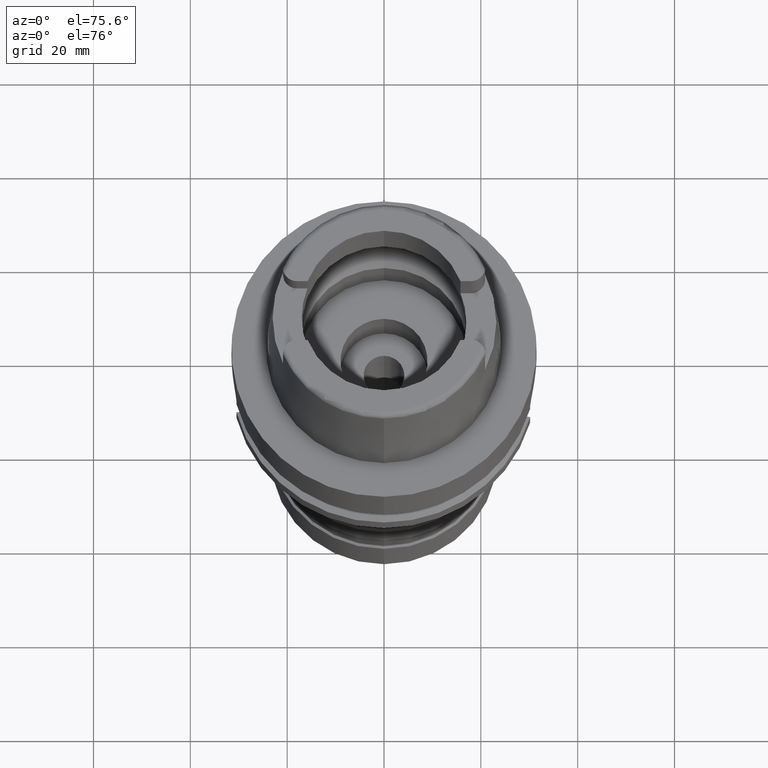
[diagram: clean part render]
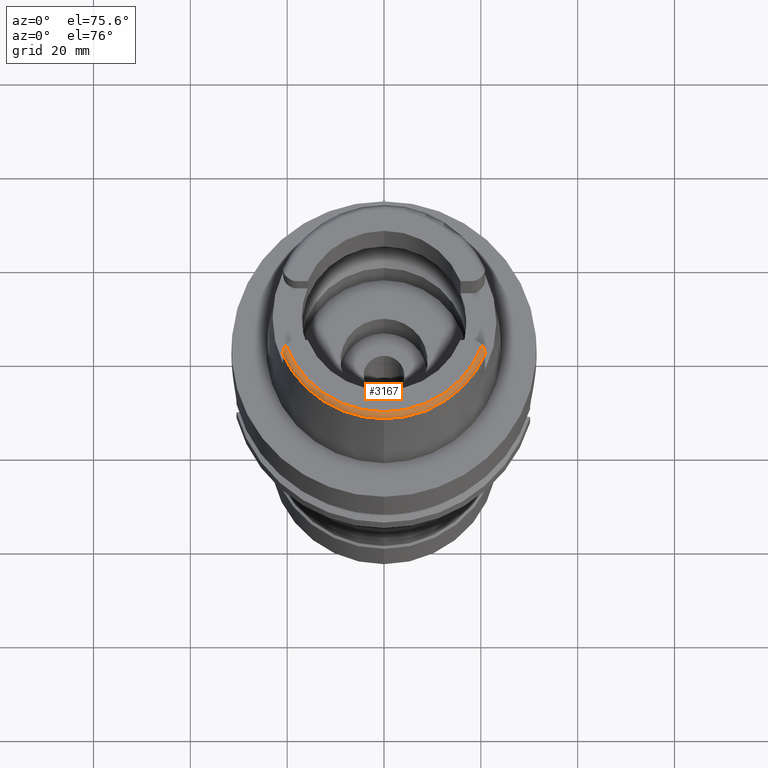
[diagram: same view with one face highlighted and labeled with its STEP entity id]
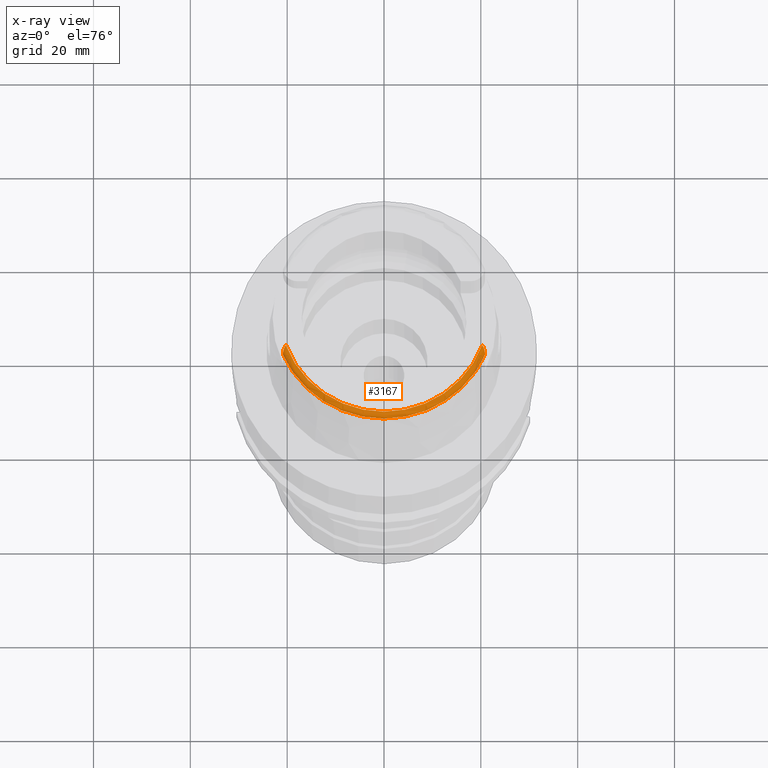
[diagram: x-ray of the same camera — body ghosted, the highlighted face saturated]
A machine part, auxiliary view. The second image highlights one B-rep face of the part: STEP entity #3167.
The next image is the same camera in x-ray: the body ghosted, the highlighted face saturated — about 0% of this face is hidden behind the body in this view.
In plain terms, the highlighted toroidal blend (fillet) surface has major radius 21.5735 mm and minor (blend) radius 1.2 mm.
Its self-contained STEP definition (entity closure, byte-faithful):
#281=CARTESIAN_POINT('',(0.E0,1.601838013285E-14,3.2E1));
#282=DIRECTION('',(0.E0,0.E0,-1.E0));
#283=DIRECTION('',(9.395199128801E-1,-3.424942821446E-1,0.E0));
#284=AXIS2_PLACEMENT_3D('',#281,#282,#283);
#289=CARTESIAN_POINT('',(0.E0,1.601838013285E-14,3.2E1));
#290=DIRECTION('',(0.E0,0.E0,-1.E0));
#291=DIRECTION('',(-9.289215035771E-4,-9.999995685523E-1,0.E0));
#292=AXIS2_PLACEMENT_3D('',#289,#290,#291);
#311=CARTESIAN_POINT('',(-2.086974104063E1,-9.111384045991E0,3.085992598970E1));
#312=CARTESIAN_POINT('',(-2.086968049913E1,-9.106869185121E0,3.089716359061E1));
#313=CARTESIAN_POINT('',(-2.086945458154E1,-9.089325966571E0,3.097366148491E1));
#314=CARTESIAN_POINT('',(-2.086787117683E1,-9.031975009994E0,3.109655136946E1));
#315=CARTESIAN_POINT('',(-2.086333573834E1,-8.945747681221E0,3.121972793316E1));
#316=CARTESIAN_POINT('',(-2.085318603399E1,-8.830502089209E0,3.134478445266E1));
#317=CARTESIAN_POINT('',(-2.083429637357E1,-8.688901607577E0,3.146900528865E1));
#318=CARTESIAN_POINT('',(-2.080196847323E1,-8.518162510526E0,3.159398467726E1));
#319=CARTESIAN_POINT('',(-2.074996037687E1,-8.316918188337E0,3.171734272143E1));
#320=CARTESIAN_POINT('',(-2.067036566628E1,-8.085688985214E0,3.183331067642E1));
#321=CARTESIAN_POINT('',(-2.055786724940E1,-7.835743047313E0,3.192902117289E1));
#322=CARTESIAN_POINT('',(-2.041707015014E1,-7.591764806511E0,3.198839158464E1));
#323=CARTESIAN_POINT('',(-2.031886667882E1,-7.453679048392E0,3.2E1));
#324=CARTESIAN_POINT('',(-2.026871835884E1,-7.388795116670E0,3.2E1));
#329=CARTESIAN_POINT('',(2.026871835884E1,-7.388795116670E0,3.2E1));
#330=CARTESIAN_POINT('',(2.031886943846E1,-7.453682618921E0,3.2E1));
#331=CARTESIAN_POINT('',(2.041707347575E1,-7.591770762304E0,3.198838998002E1));
#332=CARTESIAN_POINT('',(2.055785678394E1,-7.835725151662E0,3.192902538579E1));
#333=CARTESIAN_POINT('',(2.067034800821E1,-8.085644936151E0,3.183332992785E1));
#334=CARTESIAN_POINT('',(2.074994915174E1,-8.316880932559E0,3.171736329572E1));
#335=CARTESIAN_POINT('',(2.080195747223E1,-8.518113746449E0,3.159401699234E1));
#336=CARTESIAN_POINT('',(2.083429193294E1,-8.688870798318E0,3.146903108646E1));
#337=CARTESIAN_POINT('',(2.085318529251E1,-8.830494132759E0,3.134479256341E1));
#338=CARTESIAN_POINT('',(2.086333532394E1,-8.945741215611E0,3.121973671257E1));
#339=CARTESIAN_POINT('',(2.086787135135E1,-9.031978268690E0,3.109654582821E1));
#340=CARTESIAN_POINT('',(2.086945445093E1,-9.089322982390E0,3.097366873970E1));
#341=CARTESIAN_POINT('',(2.086968056482E1,-9.106868609306E0,3.089716564832E1));
#342=CARTESIAN_POINT('',(2.086974110889E1,-9.111383544664E0,3.085992740419E1));
#347=CARTESIAN_POINT('',(0.E0,1.601838013285E-14,3.085992712280E1));
#348=DIRECTION('',(0.E0,0.E0,-1.E0));
#349=DIRECTION('',(9.164655183266E-1,-4.001136759952E-1,0.E0));
#350=AXIS2_PLACEMENT_3D('',#347,#348,#349);
#355=CARTESIAN_POINT('',(0.E0,1.601838013285E-14,3.085992712280E1));
#356=DIRECTION('',(0.E0,0.E0,-1.E0));
#357=DIRECTION('',(0.E0,-1.E0,0.E0));
#358=AXIS2_PLACEMENT_3D('',#355,#356,#357);
#363=CARTESIAN_POINT('',(0.E0,1.601838013285E-14,3.085992712280E1));
#364=DIRECTION('',(0.E0,0.E0,-1.E0));
#365=DIRECTION('',(-9.289215035765E-4,-9.999995685523E-1,0.E0));
#366=AXIS2_PLACEMENT_3D('',#363,#364,#365);
#2615=CARTESIAN_POINT('',(-2.026871835884E1,-7.388795116669E0,3.2E1));
#2617=VERTEX_POINT('',#2615);
#2623=CARTESIAN_POINT('',(2.026871835884E1,-7.388795116670E0,3.2E1));
#2624=VERTEX_POINT('',#2623);
#2625=CARTESIAN_POINT('',(-2.004007373911E-2,-2.157347527826E1,3.2E1));
#2626=VERTEX_POINT('',#2625);
#2643=VERTEX_POINT('',#311);
#2652=VERTEX_POINT('',#342);
#2653=CARTESIAN_POINT('',(0.E0,-2.277198729362E1,3.085992712280E1));
#2654=VERTEX_POINT('',#2653);
#2655=CARTESIAN_POINT('',(-2.115338867621E-2,-2.277197746870E1,
3.085992712280E1));
#2656=VERTEX_POINT('',#2655);
#3149=CARTESIAN_POINT('',(0.E0,1.601838013285E-14,3.08E1));
#3150=DIRECTION('',(0.E0,0.E0,-1.E0));
#3151=DIRECTION('',(-9.289215035770E-4,-9.999995685523E-1,0.E0));
#3152=AXIS2_PLACEMENT_3D('',#3149,#3150,#3151);
#3153=TOROIDAL_SURFACE('',#3152,2.157348458609E1,1.2E0);
#3154=ORIENTED_EDGE('',*,*,#3138,.T.);
#3155=ORIENTED_EDGE('',*,*,#3127,.F.);
#3156=ORIENTED_EDGE('',*,*,#3125,.F.);
#3158=ORIENTED_EDGE('',*,*,#3157,.T.);
#3160=ORIENTED_EDGE('',*,*,#3159,.T.);
#3162=ORIENTED_EDGE('',*,*,#3161,.T.);
#3164=ORIENTED_EDGE('',*,*,#3163,.T.);
#3165=EDGE_LOOP('',(#3154,#3155,#3156,#3158,#3160,#3162,#3164));
#3166=FACE_OUTER_BOUND('',#3165,.F.);
#285=CIRCLE('',#284,2.157348458609E1);
#293=CIRCLE('',#292,2.157348458609E1);
#325=B_SPLINE_CURVE_WITH_KNOTS('',3,(#311,#312,#313,#314,#315,#316,#317,#318,
#319,#320,#321,#322,#323,#324),.UNSPECIFIED.,.F.,.F.,(4,1,1,1,1,1,1,1,1,1,1,4),(
0.E0,9.090909090909E-2,1.818181818182E-1,2.727272727273E-1,3.636363636364E-1,
4.545454545455E-1,5.454545454545E-1,6.363636363636E-1,7.272727272727E-1,
8.181818181818E-1,9.090909090909E-1,1.E0),.UNSPECIFIED.);
#343=B_SPLINE_CURVE_WITH_KNOTS('',3,(#329,#330,#331,#332,#333,#334,#335,#336,
#337,#338,#339,#340,#341,#342),.UNSPECIFIED.,.F.,.F.,(4,1,1,1,1,1,1,1,1,1,1,4),(
0.E0,9.090909090909E-2,1.818181818182E-1,2.727272727273E-1,3.636363636364E-1,
4.545454545455E-1,5.454545454545E-1,6.363636363636E-1,7.272727272727E-1,
8.181818181818E-1,9.090909090909E-1,1.E0),.UNSPECIFIED.);
#351=CIRCLE('',#350,2.277198729362E1);
#359=CIRCLE('',#358,2.277198729362E1);
#367=CIRCLE('',#366,2.277198729362E1);
#3125=EDGE_CURVE('',#2624,#2626,#285,.T.);
#3127=EDGE_CURVE('',#2626,#2617,#293,.T.);
#3138=EDGE_CURVE('',#2643,#2617,#325,.T.);
#3157=EDGE_CURVE('',#2624,#2652,#343,.T.);
#3159=EDGE_CURVE('',#2652,#2654,#351,.T.);
#3161=EDGE_CURVE('',#2654,#2656,#359,.T.);
#3163=EDGE_CURVE('',#2656,#2643,#367,.T.);
#3167=ADVANCED_FACE('',(#3166),#3153,.T.);